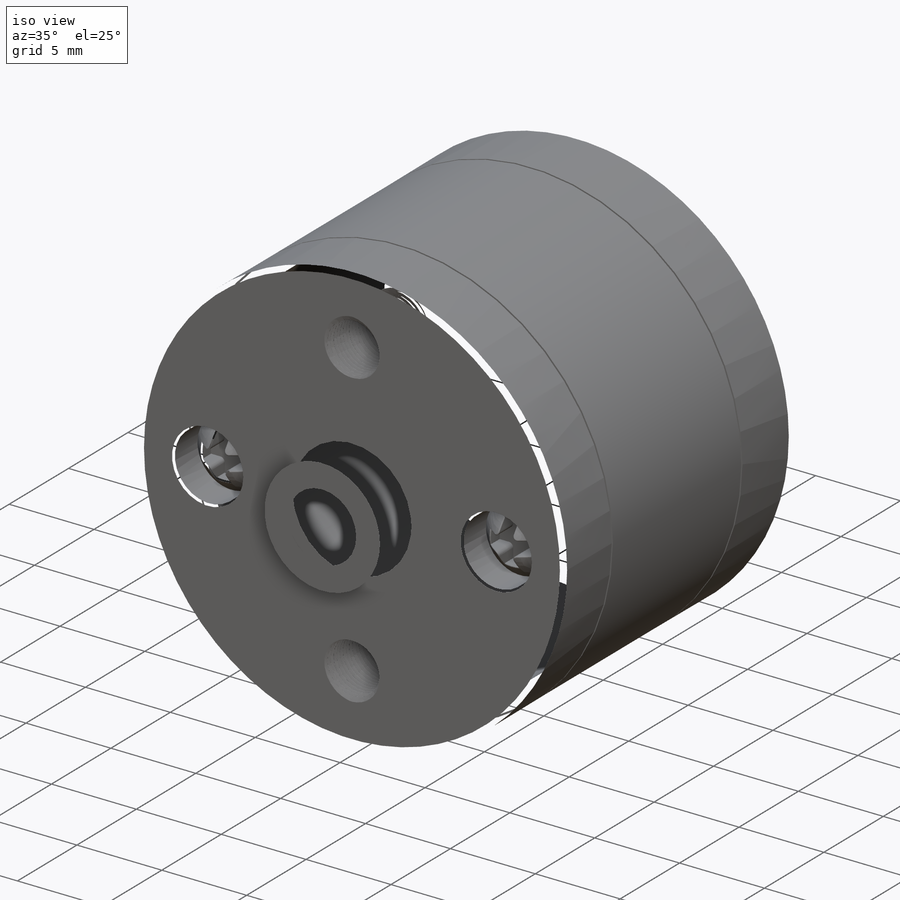
[diagram: iso view]
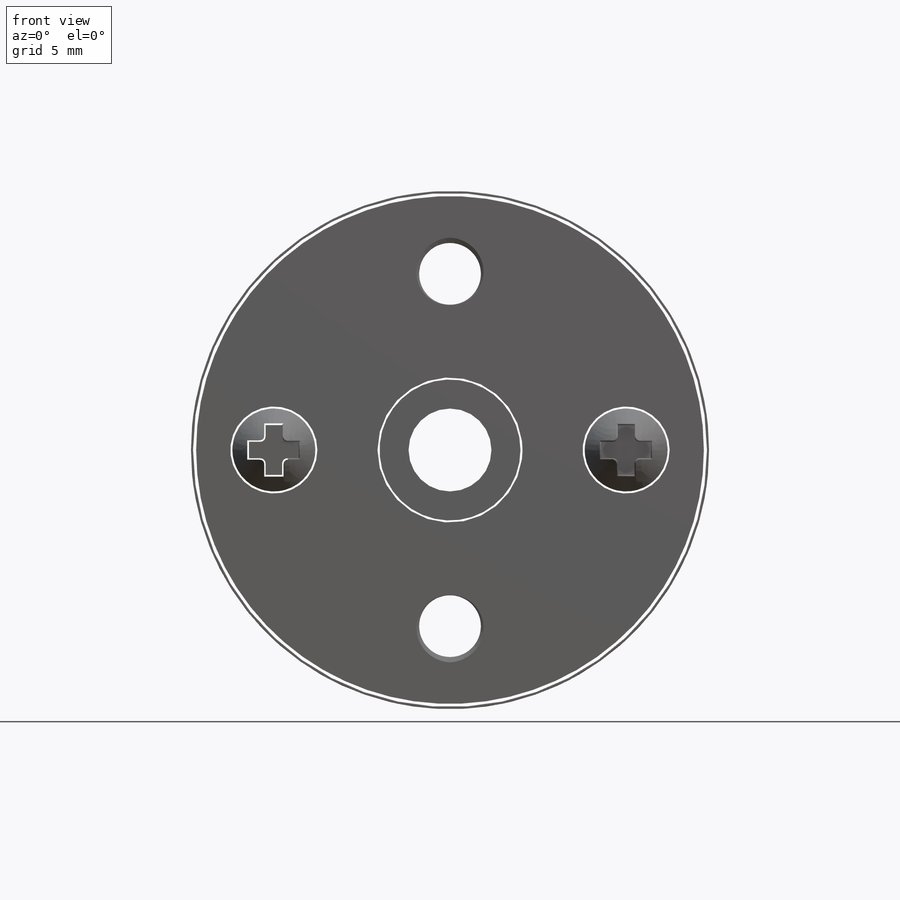
[diagram: front view]
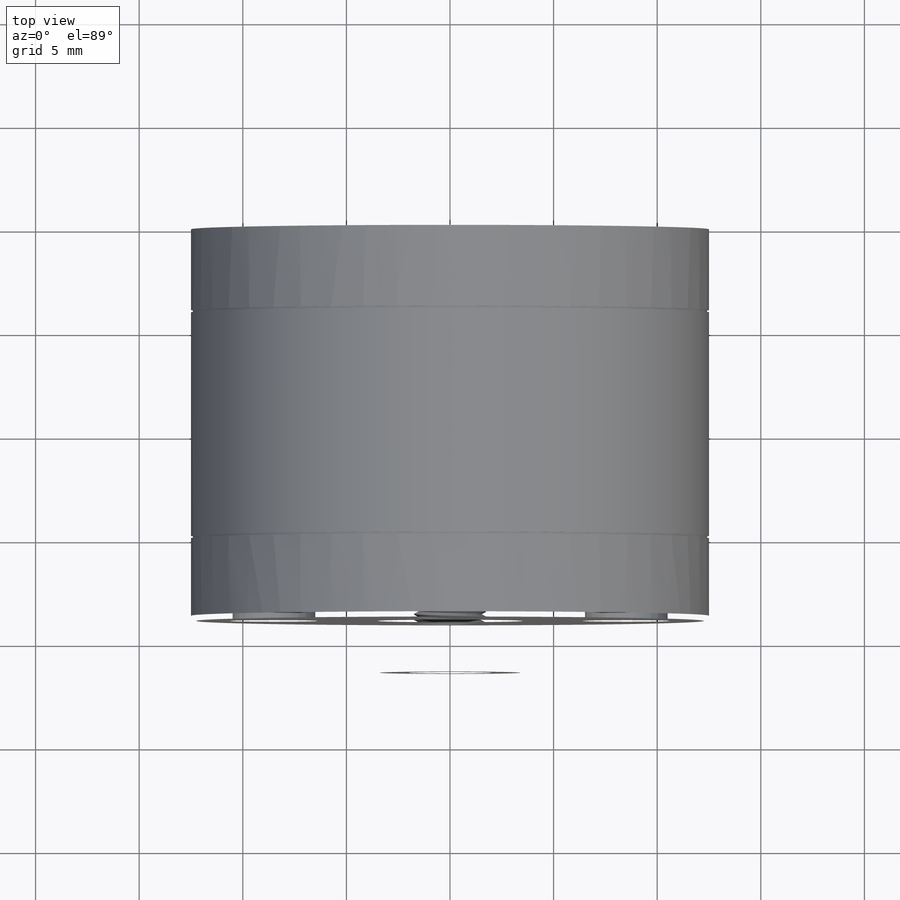
[diagram: top view]
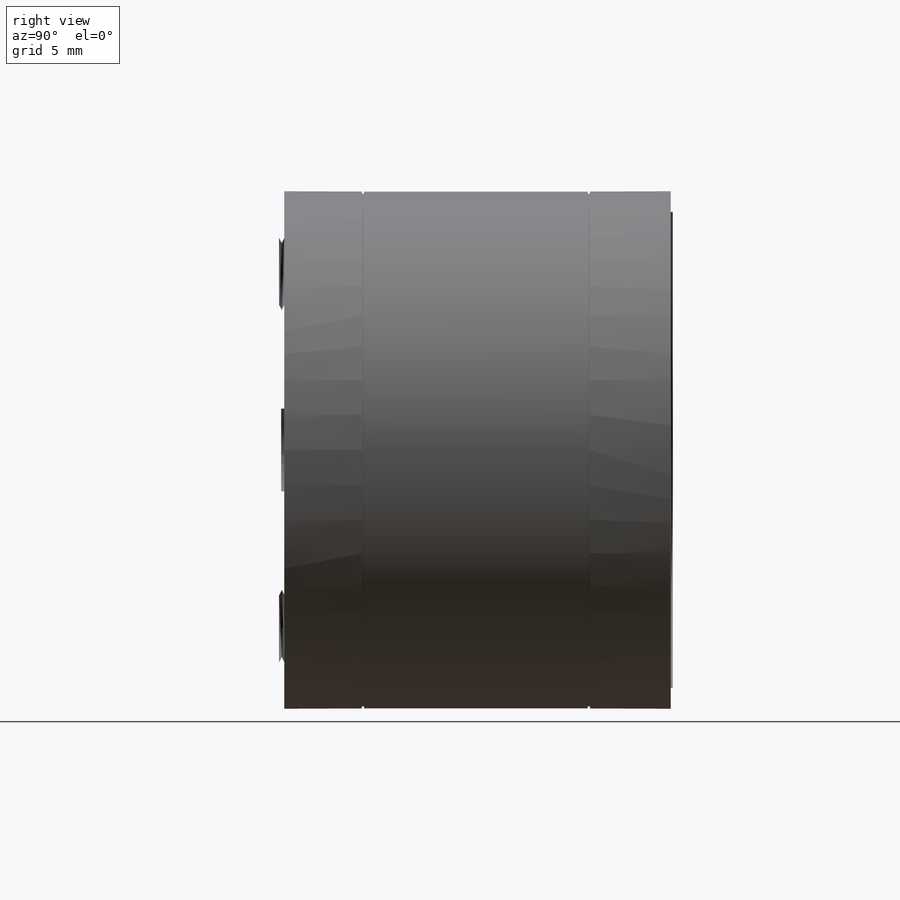
[diagram: right view]
SOLIDWORKS PART (.sldprt)
format: sldprt  version: not decoded by parser v0  size: 1,119,232 bytes
history: native  units: mm
features: sketch x11, cut_extrude x6, plane x5, extrude x3, mirror x3, fillet x3, material x1, dome x1, helix x1, sweep x1 (+14 scaffold rows collapsed; 4 parser-record rows omitted)
feature tree (53):
  scaffold x14  (default folders/planes/origin — collapsed)
  material  "Material <not specified>"
  plane  "Ön Düzlem"
  plane  "Üst Düzlem"
  plane  "Sağ Düzlem"
  parser-record x4  (decoder bookkeeping rows leaked as tree rows — omitted from the tree; the rows remain in map.json)
  sketch  "Sketch1"  dims[D1=25.0mm]
  extrude  "Boss-Extrude1"  Depth=19mm
  plane  "Plane1"  Offset=4mm
  sketch  "Sketch2"  dims[c1.D1=~23.429186mm c1.D2=25.0mm c2.D1=0.1mm c2.D2=0.0mm]
  cut_extrude  "Cut-Extrude1"  Depth=0.1mm
  plane  "Plane3"
  mirror  "Mirror1"
  sketch  "Sketch3"  dims[D1=1.0mm]
  cut_extrude  "Cut-Extrude2"  Depth=15mm
  sketch  "Sketch4"  dims[c1.D1=~1.920696mm c1.D2=~1.920696mm c1.D3=3.0mm c1.D4=3.0mm c1.D5=~2.712254mm c1.D6=~2.712254mm c1.D7=4.0mm c1.D8=4.0mm c2.D1=17.0mm c2.D2=8.5mm c2.D5=17.0mm c2.D6=8.5mm]
  cut_extrude  "Cut-Extrude3"  [1 undecoded]
  sketch  "Sketch6"  dims[c1.D1=4.0mm c1.D2=4.0mm c1.D3=4.0mm c1.D4=4.0mm c2.D3=17.0mm c2.D4=8.5mm]
  cut_extrude  "Cut-Extrude4"  Depth=2mm
  dome  "Dome1"
  sketch  "Sketch7"  dims[D12=0.25mm D1=0.8mm D2=0.8mm D3=0.8mm D4=0.8mm D5=0.8mm D6=0.8mm D7=0.8mm D8=0.8mm D9=0.8mm D10=0.4mm D11=0.4mm]
  cut_extrude  "Cut-Extrude5"  Depth=2mm
  mirror  "Mirror2"
  sketch  "Sketch9"  dims[c1.D1=0.25mm c1.D2=0.125mm c1.D3=0.25mm c1.D4=0.25mm c2.D3=0.25mm c2.D4=0.25mm]
  sketch  "Sketch10"
  helix  "Helix/Spiral1"  Pitch=4.29mm
  sweep  "Cut-Sweep9"
  mirror  "Mirror3"
  fillet  "Fillet3"  Radius=0.05mm
  sketch  "Sketch12"  dims[D1=7.0mm]
  extrude  "Boss-Extrude2"  Depth=2.5mm
  sketch  "Sketch13"  dims[D1=4.0mm]
  extrude  "Boss-Extrude3"  Depth=9mm
  sketch  "Sketch14"  dims[D2=4.0mm D1=1.5mm]
  cut_extrude  "Cut-Extrude6"  Depth=8mm
  fillet  "Fillet1"  Radius=0.25mm
  fillet  "Fillet2"  Radius=0.1mm
decode coverage: 22 of 29 modeling features carry decoded parameters
note: ~ marks probable driven/reference dimensions
note: 1 parameter value undecoded
note: suppression state not decoded; provenance and decode notes live in map.json
